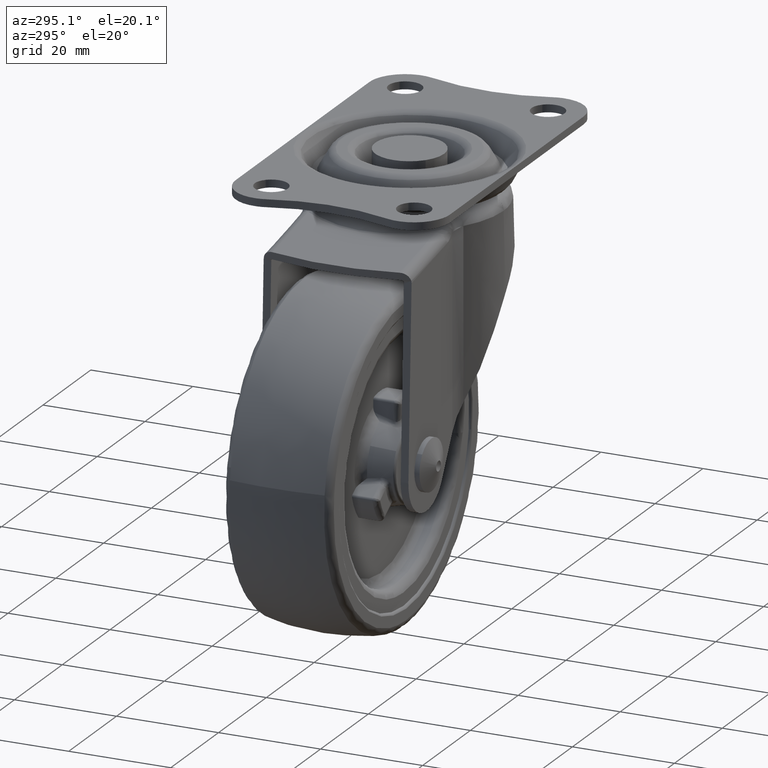
[diagram: clean part render]
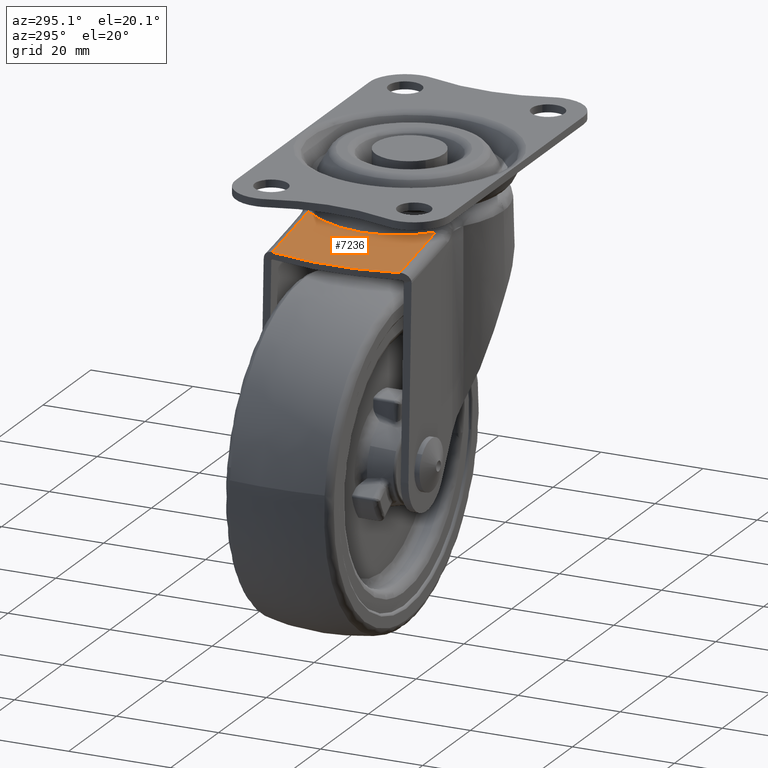
[diagram: same view with one face highlighted and labeled with its STEP entity id]
A machine part, auxiliary view. The second image highlights one B-rep face of the part: STEP entity #7236.
In plain terms, the highlighted face is a freeform B-spline surface patch.
Its self-contained STEP definition (entity closure, byte-faithful):
#3666=CARTESIAN_POINT('',(-15.797396065596800,-12.500016534822960,-7.205750666581940));
#3667=VERTEX_POINT('',#3666);
#3740=CARTESIAN_POINT('',(-30.858344562454050,-12.500016196939679,-9.861400890232220));
#3741=VERTEX_POINT('',#3740);
#3742=CARTESIAN_POINT('',(-30.858344562454050,-12.500016196939679,-9.861400890232220));
#3743=CARTESIAN_POINT('',(-15.797396065596800,-12.500016534822960,-7.205750666581940));
#3744=QUASI_UNIFORM_CURVE('',1,(#3742,#3743),.UNSPECIFIED.,.F.,.U.);
#3745=EDGE_CURVE('',#3741,#3667,#3744,.T.);
#4095=CARTESIAN_POINT('',(-15.797396065596800,12.500016534822940,-7.205750666581940));
#4096=VERTEX_POINT('',#4095);
#4435=CARTESIAN_POINT('',(-30.858344562454050,12.500016196939679,-9.861400890232220));
#4436=VERTEX_POINT('',#4435);
#4463=CARTESIAN_POINT('',(-15.797396065596800,12.500016534822940,-7.205750666581940));
#4464=CARTESIAN_POINT('',(-30.858344562454050,12.500016196939679,-9.861400890232220));
#4465=QUASI_UNIFORM_CURVE('',1,(#4463,#4464),.UNSPECIFIED.,.F.,.U.);
#4466=EDGE_CURVE('',#4096,#4436,#4465,.T.);
#5652=CARTESIAN_POINT('',(-15.797396065596800,-12.500016534822960,-7.205750666581940));
#5653=CARTESIAN_POINT('',(-16.431019511877832,-11.589009123239050,-7.317474795692935));
#5654=CARTESIAN_POINT('',(-16.991101389916452,-10.637728013396440,-7.416231639093588));
#5655=CARTESIAN_POINT('',(-17.722048673436021,-9.151018360559688,-7.545116439340985));
#5656=CARTESIAN_POINT('',(-17.947425716663581,-8.645442120927985,-7.584856205055552));
#5657=CARTESIAN_POINT('',(-18.257520781891259,-7.871760228052225,-7.639533933756146));
#5658=CARTESIAN_POINT('',(-18.356219037676809,-7.611310594589553,-7.656936972221937));
#5659=CARTESIAN_POINT('',(-18.544124468475630,-7.085213710585137,-7.690069527221624));
#5660=CARTESIAN_POINT('',(-18.633469726793528,-6.819069593156581,-7.705823391388161));
#5661=CARTESIAN_POINT('',(-19.052532268318132,-5.486552002373141,-7.779714881422380));
#5662=CARTESIAN_POINT('',(-19.302463321965529,-4.408133163241633,-7.823784142621688));
#5663=CARTESIAN_POINT('',(-19.637832411015840,-2.227379382404895,-7.882918322081661));
#5664=CARTESIAN_POINT('',(-19.723265776870232,-1.125043761779978,-7.897982416945372));
#5665=CARTESIAN_POINT('',(-19.723927488590739,0.268306302521535,-7.898099093704730));
#5666=CARTESIAN_POINT('',(-19.718724563259389,0.547752024953405,-7.897181684435043));
#5667=CARTESIAN_POINT('',(-19.702764308677530,0.968106412980689,-7.894367481922497));
#5668=CARTESIAN_POINT('',(-19.696082999785361,1.108359124432773,-7.893189395684097));
#5669=CARTESIAN_POINT('',(-19.680067190328181,1.387930629477320,-7.890365397414752));
#5670=CARTESIAN_POINT('',(-19.670727230923109,1.527412606714252,-7.888718522850200));
#5671=CARTESIAN_POINT('',(-19.617428306126431,2.223317560738288,-7.879320554407461));
#5672=CARTESIAN_POINT('',(-19.553701918426562,2.775232573656229,-7.868083956575569));
#5673=CARTESIAN_POINT('',(-19.300867730912461,4.416917174046493,-7.823502798957096));
#5674=CARTESIAN_POINT('',(-19.050444504131981,5.492703768415134,-7.779346754964473));
#5675=CARTESIAN_POINT('',(-18.551996830374829,7.078376173043921,-7.691457627054665));
#5676=CARTESIAN_POINT('',(-18.365293910613438,7.602246367682558,-7.658537105846513));
#5677=CARTESIAN_POINT('',(-18.105550903867069,8.251071714977545,-7.612737739001918));
#5678=CARTESIAN_POINT('',(-18.052224129805250,8.380668967606894,-7.603334858282329));
#5679=CARTESIAN_POINT('',(-17.943335812390171,8.638255367698552,-7.584135049391945));
#5680=CARTESIAN_POINT('',(-17.776576551804880,9.022431333360306,-7.554731105600387));
#5681=CARTESIAN_POINT('',(-17.599641480256238,9.400063622830222,-7.523532903844949));
#5682=CARTESIAN_POINT('',(-16.987608279313751,10.644530032535020,-7.415615713866889));
#5683=CARTESIAN_POINT('',(-16.427158951119068,11.594559737700580,-7.316794079423380));
#5684=CARTESIAN_POINT('',(-15.797396065596800,12.500016534822940,-7.205750666581940));
#5685=B_SPLINE_CURVE_WITH_KNOTS('',3,(#5652,#5653,#5654,#5655,#5656,#5657,#5658,#5659,#5660,#5661,#5662,#5663,#5664,#5665,#5666,#5667,#5668,#5669,#5670,#5671,#5672,#5673,#5674,#5675,#5676,#5677,#5678,#5679,#5680,#5681,#5682,#5683,#5684),.UNSPECIFIED.,.F.,.U.,(4,2,2,2,2,2,2,2,2,2,2,2,2,2,1,2,4),(0.0,0.125000000000000,0.187500000000000,0.218750000000000,0.250000000000000,0.375000000000000,0.500000000000000,0.531250000000000,0.546875000000000,0.562500000000000,0.625000000000000,0.749999999999999,0.812499999999999,0.828124999999999,0.843749999999999,0.874999999999999,1.0),.UNSPECIFIED.);
#5686=EDGE_CURVE('',#3667,#4096,#5685,.T.);
#7217=CARTESIAN_POINT('',(-32.809797158004571,13.748767814196730,-10.205488057607591));
#7218=CARTESIAN_POINT('',(-14.988044046477221,13.748767814196730,-7.063092203467746));
#7219=CARTESIAN_POINT('',(-32.809797158004571,-13.748766920125901,-10.205488057607591));
#7220=CARTESIAN_POINT('',(-14.988044046477221,-13.748766920125901,-7.063092203467746));
#7221=B_SPLINE_SURFACE_WITH_KNOTS('',1,1,((#7217,#7219),(#7218,#7220)),.UNSPECIFIED.,.F.,.F.,.U.,(2,2),(2,2),(0.0,18.096671950177750),(0.0,27.497534734322642),.UNSPECIFIED.);
#7222=ORIENTED_EDGE('',*,*,#5686,.T.);
#7223=ORIENTED_EDGE('',*,*,#4466,.T.);
#7224=CARTESIAN_POINT('',(-30.858344562454050,12.500016196939679,-9.861400890232220));
#7225=CARTESIAN_POINT('',(-31.309188454910469,10.054359118454640,-9.940895313123932));
#7226=CARTESIAN_POINT('',(-31.962628321718210,4.982644472062059,-10.056112189686891));
#7227=CARTESIAN_POINT('',(-32.106091183531092,-3.411194992856641,-10.081408079455040));
#7228=CARTESIAN_POINT('',(-31.451661123094439,-9.282060635276322,-9.966016608376291));
#7229=CARTESIAN_POINT('',(-30.858344562454050,-12.500016196939679,-9.861400890232220));
#7230=B_SPLINE_CURVE_WITH_KNOTS('',3,(#7224,#7225,#7226,#7227,#7228,#7229),.UNSPECIFIED.,.F.,.U.,(4,1,1,4),(5.909726E-010,7.464414000355834,15.321691723837111,25.143289194458049),.UNSPECIFIED.);
#7231=EDGE_CURVE('',#4436,#3741,#7230,.T.);
#7232=ORIENTED_EDGE('',*,*,#7231,.T.);
#7233=ORIENTED_EDGE('',*,*,#3745,.T.);
#7234=EDGE_LOOP('',(#7222,#7223,#7232,#7233));
#7235=FACE_OUTER_BOUND('',#7234,.T.);
#7236=ADVANCED_FACE('',(#7235),#7221,.F.);